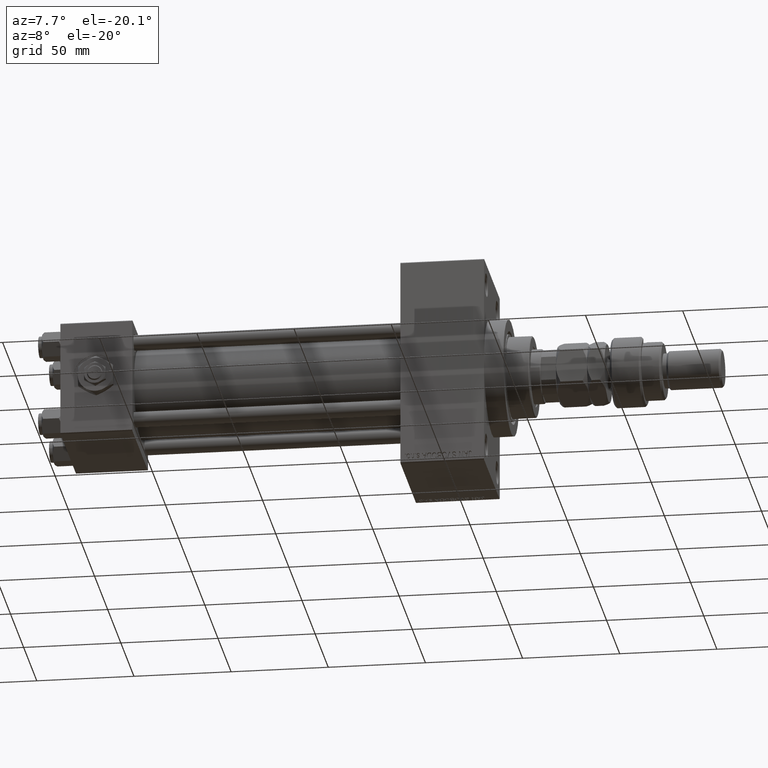
[diagram: clean part render]
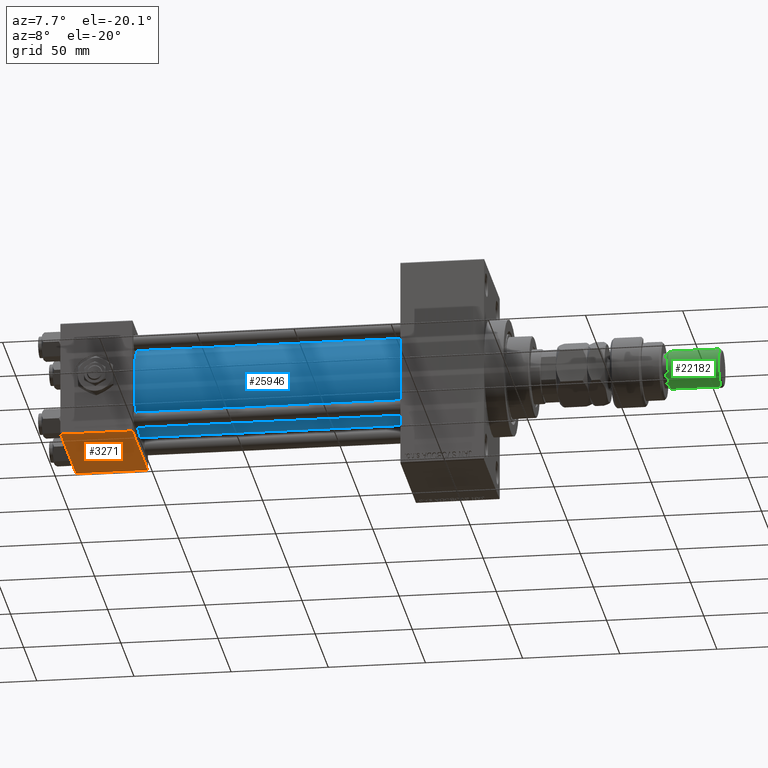
[diagram: same view with three faces highlighted in distinct colors, each labeled with its STEP entity id]
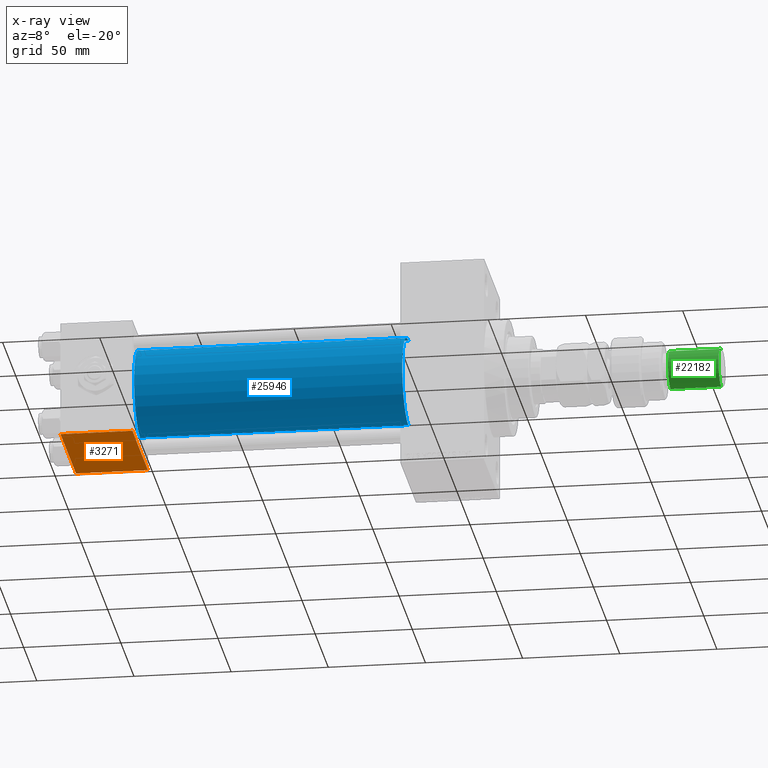
[diagram: x-ray of the same camera — body ghosted, the three highlighted faces saturated]
A machine part, auxiliary view with three faces highlighted in distinct colors.
The next image is the same camera in x-ray (body ghosted, the three faces saturated) — at least one of them is partly hidden behind the body in this view.
Their STEP definitions:

[orange] entity #3271 — the highlighted planar face has unit normal (0, 0, -1).
#2088 = ORIENTED_EDGE ( 'NONE', *, *, #33939, .T. ) ;
#2945 = CARTESIAN_POINT ( 'NONE',  ( 37.00000000000000000, 29.49999999999997868, -30.00000000000000000 ) ) ;
#3271 = ADVANCED_FACE ( 'NONE', ( #33522 ), #5453, .T. ) ;
#4850 = VECTOR ( 'NONE', #6098, 1000.000000000000000 ) ;
#5453 = PLANE ( 'NONE',  #19440 ) ;
#6098 = DIRECTION ( 'NONE',  ( 1.000000000000000000, 0.000000000000000000, 0.000000000000000000 ) ) ;
#7051 = VECTOR ( 'NONE', #16460, 1000.000000000000000 ) ;
#7393 = VERTEX_POINT ( 'NONE', #14389 ) ;
#7533 = ORIENTED_EDGE ( 'NONE', *, *, #48200, .T. ) ;
#10027 = EDGE_LOOP ( 'NONE', ( #20436, #16880, #2088, #7533 ) ) ;
#10521 = CARTESIAN_POINT ( 'NONE',  ( 0.000000000000000000, -29.50000000000000000, -30.00000000000000711 ) ) ;
#13043 = CARTESIAN_POINT ( 'NONE',  ( 37.00000000000000000, 29.99999999999999289, -30.00000000000000000 ) ) ;
#13333 = DIRECTION ( 'NONE',  ( 0.000000000000000000, 1.156482317317871725E-16, -1.000000000000000000 ) ) ;
#14389 = CARTESIAN_POINT ( 'NONE',  ( 0.000000000000000000, 29.49999999999997868, -30.00000000000000000 ) ) ;
#14436 = VERTEX_POINT ( 'NONE', #2945 ) ;
#16460 = DIRECTION ( 'NONE',  ( 0.000000000000000000, -1.000000000000000000, -1.156482317317871725E-16 ) ) ;
#16880 = ORIENTED_EDGE ( 'NONE', *, *, #41775, .T. ) ;
#19440 = AXIS2_PLACEMENT_3D ( 'NONE', #29586, #13333, #45829 ) ;
#20138 = LINE ( 'NONE', #13043, #7051 ) ;
#20436 = ORIENTED_EDGE ( 'NONE', *, *, #41778, .F. ) ;
#22113 = LINE ( 'NONE', #38098, #40864 ) ;
#22525 = VECTOR ( 'NONE', #27366, 1000.000000000000000 ) ;
#25469 = VERTEX_POINT ( 'NONE', #10521 ) ;
#26592 = LINE ( 'NONE', #46264, #22525 ) ;
#27366 = DIRECTION ( 'NONE',  ( -1.000000000000000000, 0.000000000000000000, 0.000000000000000000 ) ) ;
#28336 = VERTEX_POINT ( 'NONE', #41363 ) ;
#29586 = CARTESIAN_POINT ( 'NONE',  ( 37.00000000000000000, 29.99999999999999289, -30.00000000000000000 ) ) ;
#33522 = FACE_OUTER_BOUND ( 'NONE', #10027, .T. ) ;
#33939 = EDGE_CURVE ( 'NONE', #14436, #28336, #20138, .T. ) ;
#38098 = CARTESIAN_POINT ( 'NONE',  ( 0.000000000000000000, 29.99999999999999289, -30.00000000000000000 ) ) ;
#38356 = CARTESIAN_POINT ( 'NONE',  ( 37.00000000000000000, 29.49999999999997868, -30.00000000000000000 ) ) ;
#40864 = VECTOR ( 'NONE', #50147, 1000.000000000000000 ) ;
#41363 = CARTESIAN_POINT ( 'NONE',  ( 37.00000000000000000, -29.50000000000000000, -30.00000000000000711 ) ) ;
#41775 = EDGE_CURVE ( 'NONE', #7393, #14436, #42020, .T. ) ;
#41778 = EDGE_CURVE ( 'NONE', #7393, #25469, #22113, .T. ) ;
#42020 = LINE ( 'NONE', #38356, #4850 ) ;
#45829 = DIRECTION ( 'NONE',  ( 0.000000000000000000, 1.000000000000000000, 1.156482317317871725E-16 ) ) ;
#46264 = CARTESIAN_POINT ( 'NONE',  ( 0.000000000000000000, -29.50000000000001066, -30.00000000000000711 ) ) ;
#48200 = EDGE_CURVE ( 'NONE', #28336, #25469, #26592, .T. ) ;
#50147 = DIRECTION ( 'NONE',  ( 0.000000000000000000, -1.000000000000000000, -1.156482317317871725E-16 ) ) ;

[blue] entity #25946 — the highlighted cylindrical surface (partial cylindrical patch) has radius 23 mm, axis along (-1, -0, -0).
#3233 = CIRCLE ( 'NONE', #14952, 23.00000000000000000 ) ;
#3247 = DIRECTION ( 'NONE',  ( -1.000000000000000000, -0.000000000000000000, -0.000000000000000000 ) ) ;
#7168 = FACE_OUTER_BOUND ( 'NONE', #31194, .T. ) ;
#8152 = CARTESIAN_POINT ( 'NONE',  ( 175.0000000000000284, -2.602085213965210642E-15, 0.000000000000000000 ) ) ;
#8631 = CIRCLE ( 'NONE', #22061, 23.00000000000000000 ) ;
#9829 = DIRECTION ( 'NONE',  ( 1.000000000000000000, -0.000000000000000000, 0.000000000000000000 ) ) ;
#10312 = EDGE_CURVE ( 'NONE', #50562, #46203, #42070, .T. ) ;
#10340 = DIRECTION ( 'NONE',  ( -1.000000000000000000, -0.000000000000000000, -0.000000000000000000 ) ) ;
#13126 = CARTESIAN_POINT ( 'NONE',  ( 37.00000000000000711, -2.602085213965210642E-15, 23.00000000000000000 ) ) ;
#13268 = LINE ( 'NONE', #38166, #17267 ) ;
#14952 = AXIS2_PLACEMENT_3D ( 'NONE', #8152, #28875, #44607 ) ;
#16054 = AXIS2_PLACEMENT_3D ( 'NONE', #46263, #10340, #42327 ) ;
#17267 = VECTOR ( 'NONE', #18251, 1000.000000000000000 ) ;
#18251 = DIRECTION ( 'NONE',  ( -1.000000000000000000, -0.000000000000000000, -0.000000000000000000 ) ) ;
#22061 = AXIS2_PLACEMENT_3D ( 'NONE', #45758, #9829, #25839 ) ;
#23186 = CARTESIAN_POINT ( 'NONE',  ( 175.0000000000000284, 2.146024240737016609E-16, -23.00000000000000000 ) ) ;
#25809 = ORIENTED_EDGE ( 'NONE', *, *, #46605, .F. ) ;
#25839 = DIRECTION ( 'NONE',  ( 0.000000000000000000, 0.000000000000000000, 1.000000000000000000 ) ) ;
#25946 = ADVANCED_FACE ( 'NONE', ( #7168 ), #49930, .T. ) ;
#28554 = EDGE_CURVE ( 'NONE', #48675, #46203, #8631, .T. ) ;
#28875 = DIRECTION ( 'NONE',  ( 1.000000000000000000, 0.000000000000000000, 0.000000000000000000 ) ) ;
#31194 = EDGE_LOOP ( 'NONE', ( #51548, #25809, #48018, #39978 ) ) ;
#33789 = CARTESIAN_POINT ( 'NONE',  ( 175.0000000000000284, 2.146024240737016609E-16, -23.00000000000000000 ) ) ;
#38166 = CARTESIAN_POINT ( 'NONE',  ( 175.0000000000000284, -2.602085213965210642E-15, 23.00000000000000000 ) ) ;
#38229 = EDGE_CURVE ( 'NONE', #47821, #48675, #13268, .T. ) ;
#39635 = VECTOR ( 'NONE', #3247, 1000.000000000000000 ) ;
#39978 = ORIENTED_EDGE ( 'NONE', *, *, #28554, .T. ) ;
#42070 = LINE ( 'NONE', #23186, #39635 ) ;
#42327 = DIRECTION ( 'NONE',  ( 0.000000000000000000, 0.000000000000000000, 1.000000000000000000 ) ) ;
#44607 = DIRECTION ( 'NONE',  ( 0.000000000000000000, 0.000000000000000000, -1.000000000000000000 ) ) ;
#45047 = CARTESIAN_POINT ( 'NONE',  ( 175.0000000000000284, -2.602085213965210642E-15, 23.00000000000000000 ) ) ;
#45758 = CARTESIAN_POINT ( 'NONE',  ( 37.00000000000000711, -2.602085213965210642E-15, 0.000000000000000000 ) ) ;
#46203 = VERTEX_POINT ( 'NONE', #46534 ) ;
#46263 = CARTESIAN_POINT ( 'NONE',  ( 175.0000000000000284, -2.602085213965210642E-15, 0.000000000000000000 ) ) ;
#46534 = CARTESIAN_POINT ( 'NONE',  ( 37.00000000000000711, 2.146024240737016609E-16, -23.00000000000000000 ) ) ;
#46605 = EDGE_CURVE ( 'NONE', #47821, #50562, #3233, .T. ) ;
#47821 = VERTEX_POINT ( 'NONE', #45047 ) ;
#48018 = ORIENTED_EDGE ( 'NONE', *, *, #38229, .T. ) ;
#48675 = VERTEX_POINT ( 'NONE', #13126 ) ;
#49930 = CYLINDRICAL_SURFACE ( 'NONE', #16054, 23.00000000000000000 ) ;
#50562 = VERTEX_POINT ( 'NONE', #33789 ) ;
#51548 = ORIENTED_EDGE ( 'NONE', *, *, #10312, .F. ) ;

[green] entity #22182 — the highlighted cylindrical surface (edge-blend (fillet) strip) has radius 10 mm, axis along (-1, -0, 0).
#1939 = AXIS2_PLACEMENT_3D ( 'NONE', #22723, #26647, #3552 ) ;
#3552 = DIRECTION ( 'NONE',  ( 1.000000000000000000, 0.000000000000000000, 0.000000000000000000 ) ) ;
#6905 = VECTOR ( 'NONE', #24059, 1000.000000000000000 ) ;
#6934 = VERTEX_POINT ( 'NONE', #48024 ) ;
#7594 = EDGE_CURVE ( 'NONE', #8768, #6934, #44510, .T. ) ;
#8763 = EDGE_CURVE ( 'NONE', #20259, #6934, #46299, .T. ) ;
#8768 = VERTEX_POINT ( 'NONE', #38707 ) ;
#9352 = FACE_OUTER_BOUND ( 'NONE', #27263, .T. ) ;
#12328 = DIRECTION ( 'NONE',  ( -0.000000000000000000, -0.000000000000000000, -1.000000000000000000 ) ) ;
#12433 = CARTESIAN_POINT ( 'NONE',  ( -10.00000000000000000, 0.000000000000000000, 54.99999999999998579 ) ) ;
#18897 = ORIENTED_EDGE ( 'NONE', *, *, #8763, .T. ) ;
#20259 = VERTEX_POINT ( 'NONE', #20916 ) ;
#20916 = CARTESIAN_POINT ( 'NONE',  ( -10.00000000000000000, 0.000000000000000000, 29.00000000000000711 ) ) ;
#21780 = DIRECTION ( 'NONE',  ( 1.000000000000000000, 0.000000000000000000, 0.000000000000000000 ) ) ;
#22182 = ADVANCED_FACE ( 'NONE', ( #9352 ), #33487, .T. ) ;
#22723 = CARTESIAN_POINT ( 'NONE',  ( 0.000000000000000000, 0.000000000000000000, 29.00000000000000711 ) ) ;
#23234 = CIRCLE ( 'NONE', #43286, 10.00000000000000000 ) ;
#23824 = EDGE_CURVE ( 'NONE', #51161, #20259, #48243, .T. ) ;
#24059 = DIRECTION ( 'NONE',  ( -0.000000000000000000, -0.000000000000000000, -1.000000000000000000 ) ) ;
#24846 = CARTESIAN_POINT ( 'NONE',  ( 0.000000000000000000, 0.000000000000000000, 56.00000000000000711 ) ) ;
#25103 = DIRECTION ( 'NONE',  ( -0.000000000000000000, -0.000000000000000000, -1.000000000000000000 ) ) ;
#25105 = CARTESIAN_POINT ( 'NONE',  ( 10.00000000000000000, 1.224646799147353256E-15, 56.00000000000000711 ) ) ;
#26647 = DIRECTION ( 'NONE',  ( -0.000000000000000000, -0.000000000000000000, 1.000000000000000000 ) ) ;
#27263 = EDGE_LOOP ( 'NONE', ( #36797, #48227, #38903, #18897 ) ) ;
#32005 = CARTESIAN_POINT ( 'NONE',  ( -10.00000000000000000, 0.000000000000000000, 56.00000000000000711 ) ) ;
#33487 = CYLINDRICAL_SURFACE ( 'NONE', #48464, 10.00000000000000000 ) ;
#35219 = VECTOR ( 'NONE', #12328, 1000.000000000000000 ) ;
#36797 = ORIENTED_EDGE ( 'NONE', *, *, #7594, .F. ) ;
#38707 = CARTESIAN_POINT ( 'NONE',  ( 10.00000000000000000, 1.224646799147353256E-15, 54.99999999999998579 ) ) ;
#38903 = ORIENTED_EDGE ( 'NONE', *, *, #23824, .T. ) ;
#41685 = DIRECTION ( 'NONE',  ( 0.000000000000000000, 0.000000000000000000, -1.000000000000000000 ) ) ;
#43286 = AXIS2_PLACEMENT_3D ( 'NONE', #44857, #41685, #21780 ) ;
#44510 = LINE ( 'NONE', #25105, #6905 ) ;
#44857 = CARTESIAN_POINT ( 'NONE',  ( 0.000000000000000000, 0.000000000000000000, 54.99999999999998579 ) ) ;
#46299 = CIRCLE ( 'NONE', #1939, 10.00000000000000000 ) ;
#48024 = CARTESIAN_POINT ( 'NONE',  ( 10.00000000000000000, 1.224646799147353256E-15, 29.00000000000000711 ) ) ;
#48227 = ORIENTED_EDGE ( 'NONE', *, *, #48783, .T. ) ;
#48243 = LINE ( 'NONE', #32005, #35219 ) ;
#48464 = AXIS2_PLACEMENT_3D ( 'NONE', #24846, #25103, #48681 ) ;
#48681 = DIRECTION ( 'NONE',  ( -1.000000000000000000, 0.000000000000000000, 0.000000000000000000 ) ) ;
#48783 = EDGE_CURVE ( 'NONE', #8768, #51161, #23234, .T. ) ;
#51161 = VERTEX_POINT ( 'NONE', #12433 ) ;